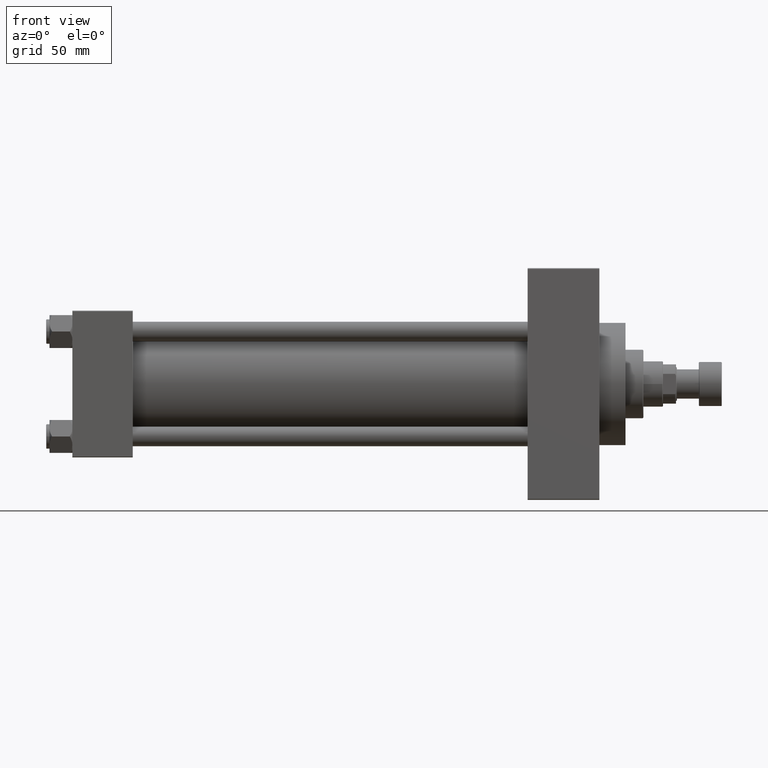
[diagram: clean part render]
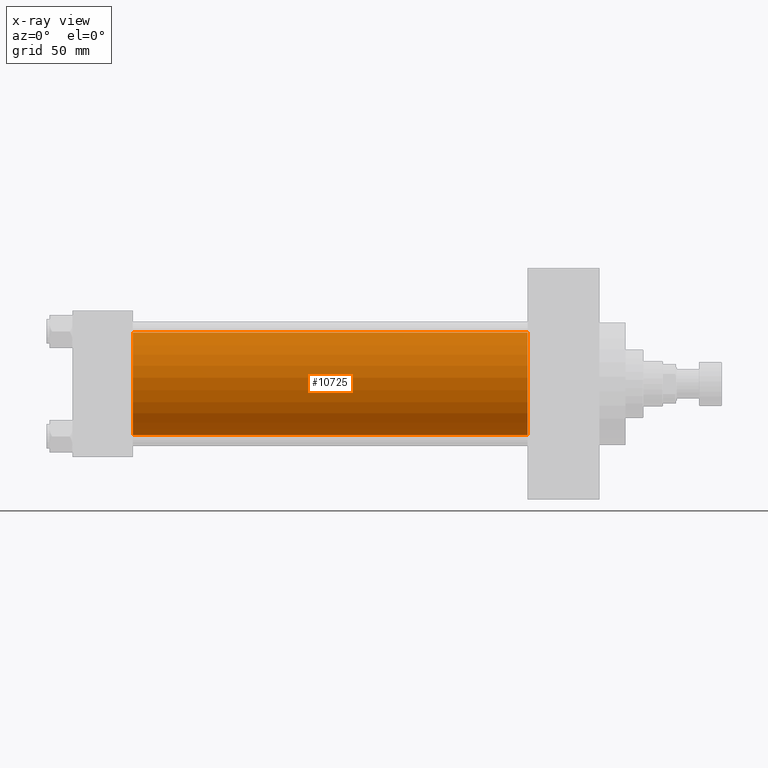
[diagram: x-ray — body ghosted, one internal face saturated and labeled with its STEP entity id]
A machine part, front view, then the same camera in x-ray: the body is ghosted and one INTERNAL B-rep face — a face not visible from any outside direction — is saturated and labeled: STEP entity #10725.
In plain terms, the highlighted cylindrical surface (partial cylindrical patch) has radius 31.5 mm, axis along (-1, -0, -0).
Its self-contained STEP definition (entity closure, byte-faithful):
#217 = CARTESIAN_POINT ( 'NONE',  ( 278.9999999999999432, 1.255552203348951850E-15, -31.50000000000000000 ) ) ;
#1728 = DIRECTION ( 'NONE',  ( 0.000000000000000000, 0.000000000000000000, -1.000000000000000000 ) ) ;
#3732 = DIRECTION ( 'NONE',  ( 0.000000000000000000, 0.000000000000000000, -1.000000000000000000 ) ) ;
#5374 = EDGE_CURVE ( 'NONE', #11180, #35940, #19191, .T. ) ;
#5501 = CARTESIAN_POINT ( 'NONE',  ( 37.00000000000000000, -2.602085213965210642E-15, 0.000000000000000000 ) ) ;
#6013 = EDGE_LOOP ( 'NONE', ( #25070, #49764, #12924, #42498 ) ) ;
#8802 = CARTESIAN_POINT ( 'NONE',  ( 278.9999999999999432, 1.255552203348951850E-15, -31.50000000000000000 ) ) ;
#10163 = CARTESIAN_POINT ( 'NONE',  ( 278.9999999999999432, -2.602085213965210642E-15, 31.50000000000000000 ) ) ;
#10725 = ADVANCED_FACE ( 'NONE', ( #18074 ), #48775, .F. ) ;
#11180 = VERTEX_POINT ( 'NONE', #10163 ) ;
#12137 = CARTESIAN_POINT ( 'NONE',  ( 278.9999999999999432, -2.602085213965210642E-15, 31.50000000000000000 ) ) ;
#12924 = ORIENTED_EDGE ( 'NONE', *, *, #32598, .F. ) ;
#13739 = EDGE_CURVE ( 'NONE', #11180, #44999, #47800, .T. ) ;
#14767 = EDGE_CURVE ( 'NONE', #44999, #17611, #43279, .T. ) ;
#16894 = CARTESIAN_POINT ( 'NONE',  ( 278.9999999999999432, -2.602085213965210642E-15, 0.000000000000000000 ) ) ;
#17611 = VERTEX_POINT ( 'NONE', #35077 ) ;
#17861 = CIRCLE ( 'NONE', #45198, 31.50000000000000000 ) ;
#18074 = FACE_OUTER_BOUND ( 'NONE', #6013, .T. ) ;
#19191 = LINE ( 'NONE', #12137, #27405 ) ;
#20860 = DIRECTION ( 'NONE',  ( 1.000000000000000000, 0.000000000000000000, 0.000000000000000000 ) ) ;
#22353 = DIRECTION ( 'NONE',  ( -1.000000000000000000, -0.000000000000000000, -0.000000000000000000 ) ) ;
#24158 = DIRECTION ( 'NONE',  ( -1.000000000000000000, -0.000000000000000000, -0.000000000000000000 ) ) ;
#24521 = VECTOR ( 'NONE', #24158, 1000.000000000000000 ) ;
#25070 = ORIENTED_EDGE ( 'NONE', *, *, #13739, .T. ) ;
#27405 = VECTOR ( 'NONE', #42080, 1000.000000000000000 ) ;
#31582 = AXIS2_PLACEMENT_3D ( 'NONE', #16894, #22353, #43562 ) ;
#32598 = EDGE_CURVE ( 'NONE', #35940, #17611, #17861, .T. ) ;
#35077 = CARTESIAN_POINT ( 'NONE',  ( 37.00000000000000000, 1.255552203348951850E-15, -31.50000000000000000 ) ) ;
#35940 = VERTEX_POINT ( 'NONE', #42880 ) ;
#42080 = DIRECTION ( 'NONE',  ( -1.000000000000000000, -0.000000000000000000, -0.000000000000000000 ) ) ;
#42498 = ORIENTED_EDGE ( 'NONE', *, *, #5374, .F. ) ;
#42880 = CARTESIAN_POINT ( 'NONE',  ( 37.00000000000000000, -2.602085213965210642E-15, 31.50000000000000000 ) ) ;
#43279 = LINE ( 'NONE', #8802, #24521 ) ;
#43562 = DIRECTION ( 'NONE',  ( 0.000000000000000000, 0.000000000000000000, 1.000000000000000000 ) ) ;
#44999 = VERTEX_POINT ( 'NONE', #217 ) ;
#45198 = AXIS2_PLACEMENT_3D ( 'NONE', #5501, #20860, #1728 ) ;
#45338 = AXIS2_PLACEMENT_3D ( 'NONE', #49778, #45996, #3732 ) ;
#45996 = DIRECTION ( 'NONE',  ( 1.000000000000000000, 0.000000000000000000, 0.000000000000000000 ) ) ;
#47800 = CIRCLE ( 'NONE', #45338, 31.50000000000000000 ) ;
#48775 = CYLINDRICAL_SURFACE ( 'NONE', #31582, 31.50000000000000000 ) ;
#49764 = ORIENTED_EDGE ( 'NONE', *, *, #14767, .T. ) ;
#49778 = CARTESIAN_POINT ( 'NONE',  ( 278.9999999999999432, -2.602085213965210642E-15, 0.000000000000000000 ) ) ;